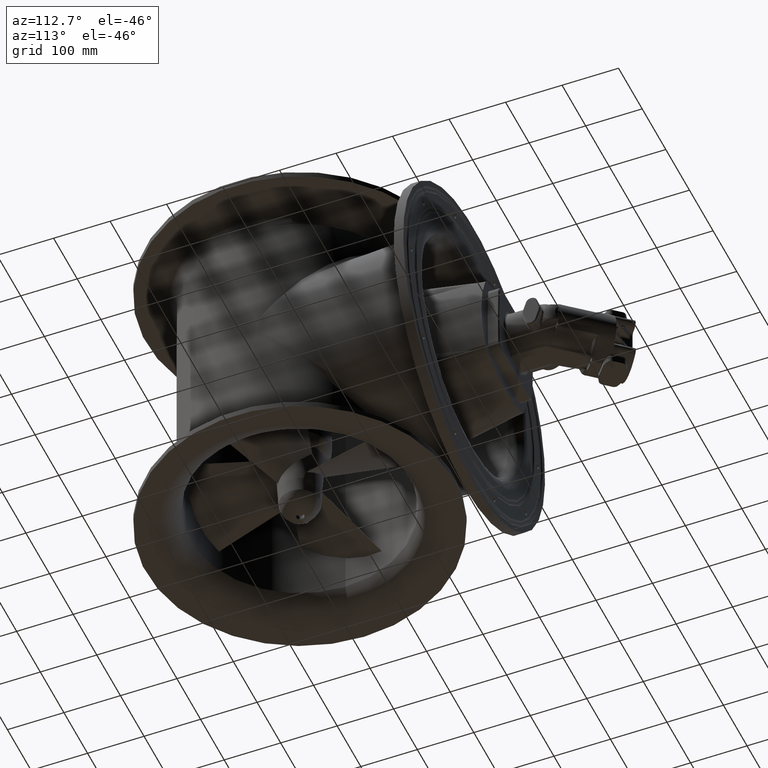
[diagram: clean part render]
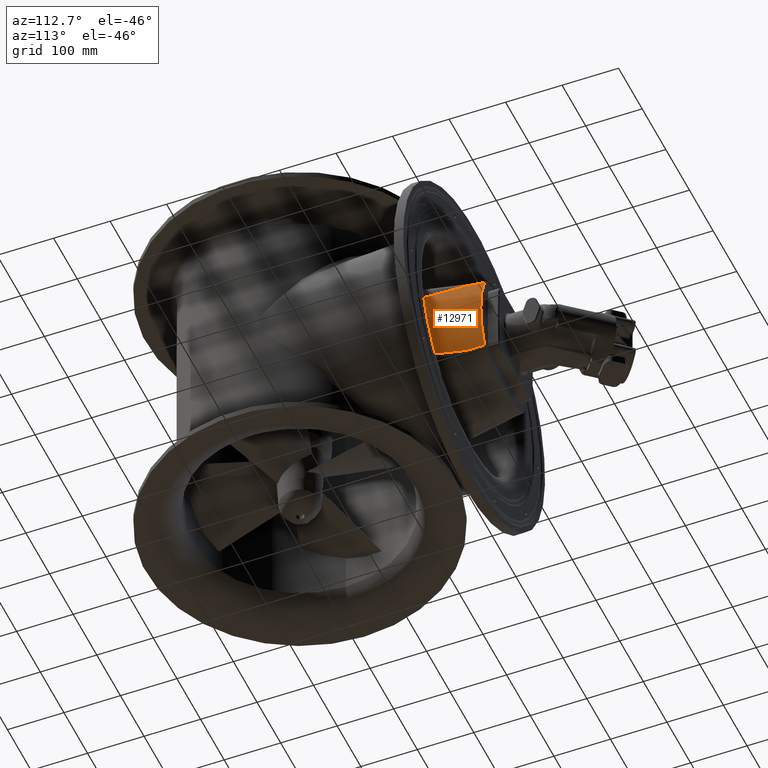
[diagram: same view with one face highlighted and labeled with its STEP entity id]
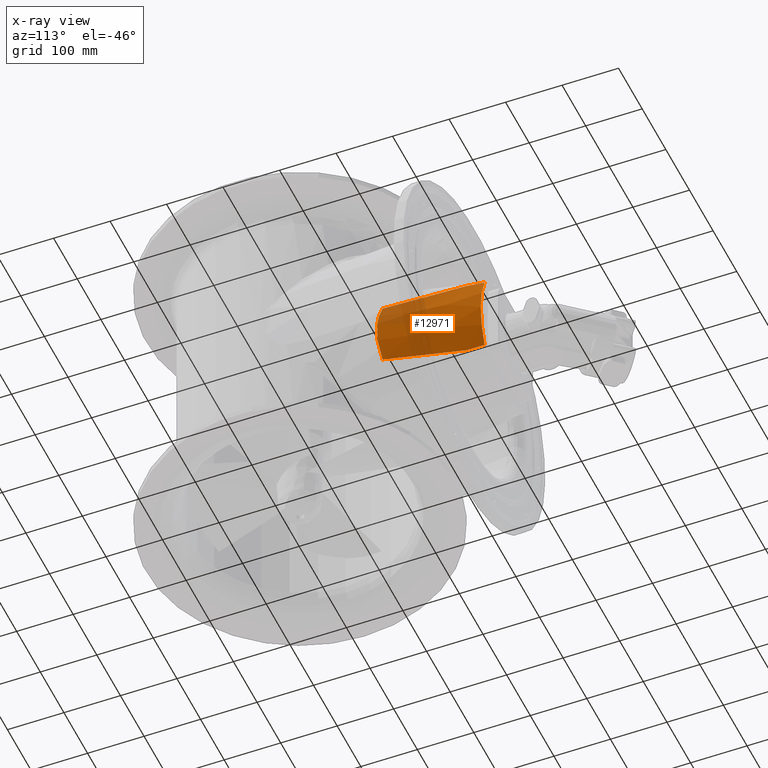
[diagram: x-ray of the same camera — body ghosted, the highlighted face saturated]
A machine part, auxiliary view. The second image highlights one B-rep face of the part: STEP entity #12971.
The next image is the same camera in x-ray: the body ghosted, the highlighted face saturated — about 27% of this face is hidden behind the body in this view.
In plain terms, the highlighted conical surface has half-angle 5 deg.
Its self-contained STEP definition (entity closure, byte-faithful):
#124=CONICAL_SURFACE('',#14062,175.,5.);
#1439=B_SPLINE_CURVE_WITH_KNOTS('',3,(#46215,#46216,#46217,#46218,#46219,
#46220,#46221,#46222),.UNSPECIFIED.,.F.,.F.,(4,1,1,1,1,4),(-14.3111656402019,
-6.13335670294366,-4.0889044686291,-2.04445223431455,-1.02222611715728,
0.),.UNSPECIFIED.);
#1440=B_SPLINE_CURVE_WITH_KNOTS('',3,(#46224,#46225,#46226,#46227,#46228,
#46229,#46230,#46231,#46232,#46233),.UNSPECIFIED.,.F.,.F.,(4,1,1,1,1,1,
1,4),(-21.4773665208314,-19.7055200818978,-17.9336736429641,-16.1618272040304,
-14.3899807650967,-12.6181343261631,-10.8462878872294,-9.07444144829569),
 .UNSPECIFIED.);
#1441=B_SPLINE_CURVE_WITH_KNOTS('',3,(#46235,#46236,#46237,#46238,#46239,
#46240,#46241,#46242),.UNSPECIFIED.,.F.,.F.,(4,1,1,1,1,4),(-15.422918744663,
-14.4006926275058,-13.3784665103485,-11.334014276034,-7.24510980740494,
-1.11175310446138),.UNSPECIFIED.);
#1442=B_SPLINE_CURVE_WITH_KNOTS('',3,(#46244,#46245,#46246,#46247),
 .UNSPECIFIED.,.F.,.F.,(4,4),(2.00902162050308,5.10415988422087),
 .UNSPECIFIED.);
#1443=B_SPLINE_CURVE_WITH_KNOTS('',3,(#46250,#46251,#46252,#46253),
 .UNSPECIFIED.,.F.,.F.,(4,4),(-5.10415988422082,-2.00902162050311),
 .UNSPECIFIED.);
#2267=FACE_OUTER_BOUND('',#3110,.T.);
#3110=EDGE_LOOP('',(#10605,#10606,#10607,#10608,#10609,#10610));
#4666=CIRCLE('',#14063,175.);
#5642=VERTEX_POINT('',#46213);
#5643=VERTEX_POINT('',#46214);
#5644=VERTEX_POINT('',#46223);
#5645=VERTEX_POINT('',#46234);
#5646=VERTEX_POINT('',#46243);
#5647=VERTEX_POINT('',#46248);
#7352=EDGE_CURVE('',#5642,#5643,#1439,.T.);
#7353=EDGE_CURVE('',#5644,#5642,#1440,.T.);
#7354=EDGE_CURVE('',#5645,#5644,#1441,.T.);
#7355=EDGE_CURVE('',#5646,#5645,#1442,.T.);
#7356=EDGE_CURVE('',#5647,#5646,#4666,.T.);
#7357=EDGE_CURVE('',#5643,#5647,#1443,.T.);
#10605=ORIENTED_EDGE('',*,*,#7352,.F.);
#10606=ORIENTED_EDGE('',*,*,#7353,.F.);
#10607=ORIENTED_EDGE('',*,*,#7354,.F.);
#10608=ORIENTED_EDGE('',*,*,#7355,.F.);
#10609=ORIENTED_EDGE('',*,*,#7356,.F.);
#10610=ORIENTED_EDGE('',*,*,#7357,.F.);
#12971=ADVANCED_FACE('',(#2267),#124,.T.);
#14062=AXIS2_PLACEMENT_3D('',#46212,#16381,#16382);
#14063=AXIS2_PLACEMENT_3D('',#46249,#16383,#16384);
#16381=DIRECTION('center_axis',(-5.02815290480203E-16,-1.,-4.8305084843109E-16));
#16382=DIRECTION('ref_axis',(0.889393280929907,-6.68023785898981E-16,0.457142857142857));
#16383=DIRECTION('center_axis',(5.02815290480203E-16,1.,4.8305084843109E-16));
#16384=DIRECTION('ref_axis',(0.889393280929907,-6.68023785898981E-16,0.457142857142857));
#46212=CARTESIAN_POINT('Origin',(-71.7472473817586,264.706140227486,-3.22505291323111E-8));
#46213=CARTESIAN_POINT('',(108.589386395997,93.0931297660956,59.8672867956944));
#46214=CARTESIAN_POINT('',(89.0599338206356,233.888032488877,75.6108618044449));
#46215=CARTESIAN_POINT('Ctrl Pts',(108.589386395997,93.0931297660957,59.8672867956943));
#46216=CARTESIAN_POINT('Ctrl Pts',(105.129550449531,119.954163853399,62.830423904495));
#46217=CARTESIAN_POINT('Ctrl Pts',(100.690694002391,153.529470509274,66.4120373550953));
#46218=CARTESIAN_POINT('Ctrl Pts',(95.0906980903185,193.776490429922,70.7377505710682));
#46219=CARTESIAN_POINT('Ctrl Pts',(92.683639910815,210.526442126624,72.6028200603436));
#46220=CARTESIAN_POINT('Ctrl Pts',(90.6731704998113,223.901727990891,74.2151978360546));
#46221=CARTESIAN_POINT('Ctrl Pts',(89.6171466427167,230.56834738326,75.1083592606683));
#46222=CARTESIAN_POINT('Ctrl Pts',(89.0599338206356,233.888032488877,75.6108618044449));
#46223=CARTESIAN_POINT('',(108.589386395997,93.0931297660956,-59.8672868601956));
#46224=CARTESIAN_POINT('Ctrl Pts',(108.589386395997,93.0931297660956,-59.8672868601957));
#46225=CARTESIAN_POINT('Ctrl Pts',(110.480636555753,92.0272113258004,-54.4663110878569));
#46226=CARTESIAN_POINT('Ctrl Pts',(113.783439217732,90.0915377459632,-43.4121805597836));
#46227=CARTESIAN_POINT('Ctrl Pts',(117.172681650822,88.000230233384,-26.2223535763655));
#46228=CARTESIAN_POINT('Ctrl Pts',(118.874777160327,86.9172499632834,-8.72787217180144));
#46229=CARTESIAN_POINT('Ctrl Pts',(118.874699104846,86.9170149905211,8.72883034740272));
#46230=CARTESIAN_POINT('Ctrl Pts',(117.172393112523,88.0005871766895,26.2215899294538));
#46231=CARTESIAN_POINT('Ctrl Pts',(113.783444803668,90.0914746408804,43.4124227926904));
#46232=CARTESIAN_POINT('Ctrl Pts',(110.480636555753,92.0272113258003,54.4663110233556));
#46233=CARTESIAN_POINT('Ctrl Pts',(108.589386395997,93.0931297660956,59.8672867956944));
#46234=CARTESIAN_POINT('',(89.0599338206358,233.888032488875,-75.610861868946));
#46235=CARTESIAN_POINT('Ctrl Pts',(89.0599338206359,233.888032488875,-75.6108618689459));
#46236=CARTESIAN_POINT('Ctrl Pts',(89.617146642717,230.568347383258,-75.1083593251693));
#46237=CARTESIAN_POINT('Ctrl Pts',(90.6728799918759,223.901603323564,-74.2157958614323));
#46238=CARTESIAN_POINT('Ctrl Pts',(92.684293872689,210.526728609849,-72.6014729487778));
#46239=CARTESIAN_POINT('Ctrl Pts',(96.0506330922125,187.075271763174,-69.997667358158));
#46240=CARTESIAN_POINT('Ctrl Pts',(101.578814158216,146.812032133749,-65.712866801375));
#46241=CARTESIAN_POINT('Ctrl Pts',(105.994509436147,113.238905331573,-62.0896396917962));
#46242=CARTESIAN_POINT('Ctrl Pts',(108.589386395997,93.0931297660956,-59.8672868601957));
#46243=CARTESIAN_POINT('',(87.0839223437498,264.706140218447,-73.4687656670667));
#46244=CARTESIAN_POINT('Ctrl Pts',(87.0839223449708,264.706140200368,-73.4687656681944));
#46245=CARTESIAN_POINT('Ctrl Pts',(87.743159707822,254.433539448303,-74.184326593388));
#46246=CARTESIAN_POINT('Ctrl Pts',(88.4018168885987,244.160834909056,-74.898328929211));
#46247=CARTESIAN_POINT('Ctrl Pts',(89.0599338206358,233.888032488875,-75.610861868946));
#46248=CARTESIAN_POINT('',(87.0839223437498,264.706140218446,73.4687656025656));
#46249=CARTESIAN_POINT('Origin',(-71.7472473817586,264.706140227486,-3.22505291323111E-8));
#46250=CARTESIAN_POINT('Ctrl Pts',(89.0599338206357,233.888032488877,75.6108618044447));
#46251=CARTESIAN_POINT('Ctrl Pts',(88.4018168885986,244.160834909058,74.8983288647097));
#46252=CARTESIAN_POINT('Ctrl Pts',(87.743159707822,254.433539448303,74.1843265288869));
#46253=CARTESIAN_POINT('Ctrl Pts',(87.0839223449709,264.706140200367,73.4687656036934));